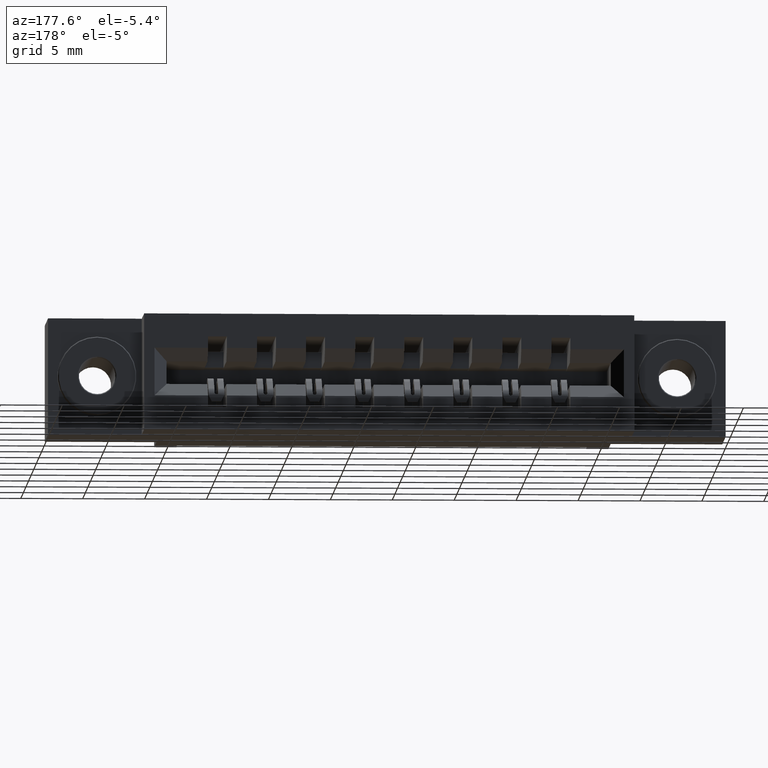
[diagram: clean part render]
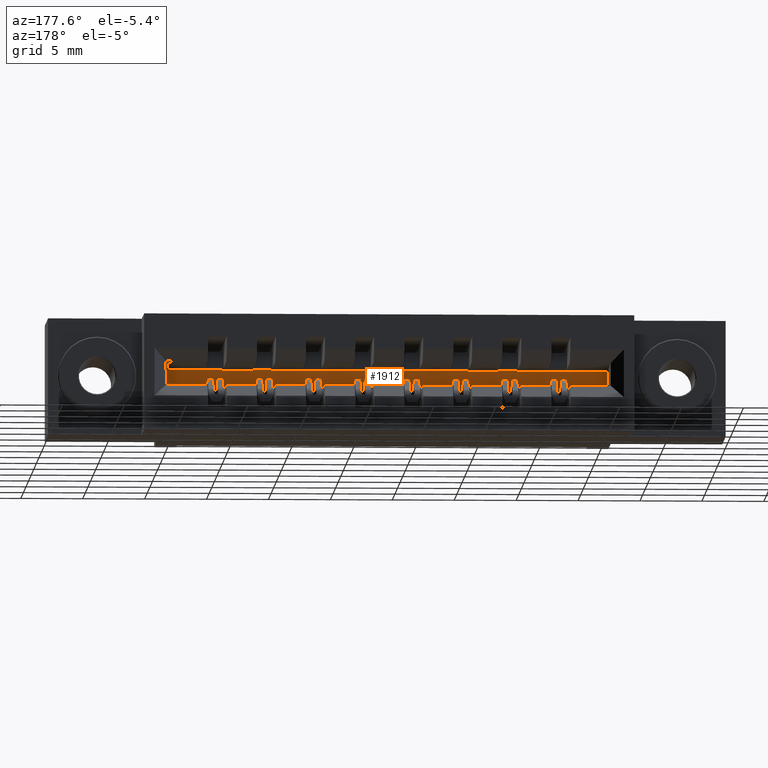
[diagram: same view with one face highlighted and labeled with its STEP entity id]
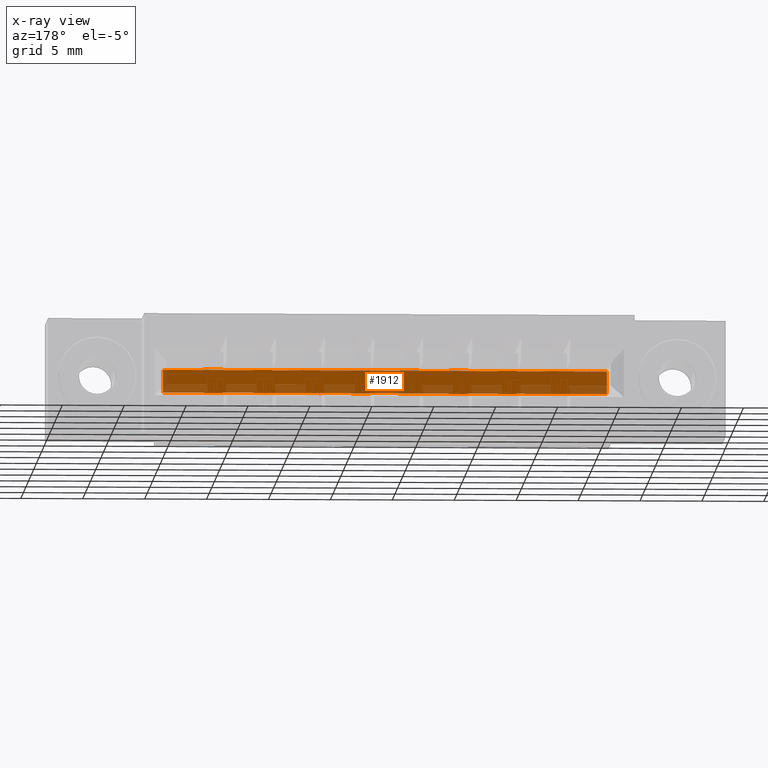
[diagram: x-ray of the same camera — body ghosted, the highlighted face saturated]
A machine part, auxiliary view. The second image highlights one B-rep face of the part: STEP entity #1912.
The next image is the same camera in x-ray: the body ghosted, the highlighted face saturated — about 27% of this face is hidden behind the body in this view.
In plain terms, the highlighted planar face has unit normal (0, 1, 0).
Its self-contained STEP definition (entity closure, byte-faithful):
#17 = CARTESIAN_POINT ( 'NONE',  ( 1.496999999999999900, 0.2700000000000001800, -0.1480000000000000200 ) ) ;
#32 = DIRECTION ( 'NONE',  ( 0.0000000000000000000, -3.691686477924679400E-015, -1.000000000000000000 ) ) ;
#61 = CARTESIAN_POINT ( 'NONE',  ( 0.9689999999999998600, 0.2700000000000001800, -0.1480000000000000200 ) ) ;
#65 = LINE ( 'NONE', #7395, #8002 ) ;
#85 = CARTESIAN_POINT ( 'NONE',  ( 1.437000000000000100, 0.2700000000000001800, -0.1480000000000000200 ) ) ;
#96 = VERTEX_POINT ( 'NONE', #7820 ) ;
#109 = CARTESIAN_POINT ( 'NONE',  ( 1.340999999999999700, 0.2700000000000001800, -0.1480000000000000200 ) ) ;
#132 = VERTEX_POINT ( 'NONE', #3170 ) ;
#150 = LINE ( 'NONE', #9900, #3816 ) ;
#188 = DIRECTION ( 'NONE',  ( 0.0000000000000000000, -3.691686477924679400E-015, -1.000000000000000000 ) ) ;
#193 = CARTESIAN_POINT ( 'NONE',  ( 1.124999999999999800, 0.2699999999999999100, -0.2220000000000000600 ) ) ;
#232 = VERTEX_POINT ( 'NONE', #1913 ) ;
#248 = DIRECTION ( 'NONE',  ( 1.000000000000000000, -0.0000000000000000000, -0.0000000000000000000 ) ) ;
#307 = CARTESIAN_POINT ( 'NONE',  ( 1.340999999999999700, 0.2700000000000001800, -0.1490000000000000800 ) ) ;
#315 = LINE ( 'NONE', #3771, #6733 ) ;
#334 = DIRECTION ( 'NONE',  ( 0.0000000000000000000, -3.691686477924679400E-015, -1.000000000000000000 ) ) ;
#359 = EDGE_CURVE ( 'NONE', #4703, #9682, #1841, .T. ) ;
#365 = CARTESIAN_POINT ( 'NONE',  ( 1.653000000000000000, 0.2700000000000001800, -0.1479999999999999900 ) ) ;
#382 = VERTEX_POINT ( 'NONE', #1179 ) ;
#385 = EDGE_CURVE ( 'NONE', #684, #1754, #10816, .T. ) ;
#426 = VERTEX_POINT ( 'NONE', #6503 ) ;
#451 = VECTOR ( 'NONE', #972, 39.37007874015748100 ) ;
#453 = LINE ( 'NONE', #9325, #9333 ) ;
#486 = EDGE_CURVE ( 'NONE', #3622, #7977, #7326, .T. ) ;
#490 = VERTEX_POINT ( 'NONE', #1550 ) ;
#505 = VERTEX_POINT ( 'NONE', #7603 ) ;
#573 = EDGE_CURVE ( 'NONE', #5412, #7275, #7056, .T. ) ;
#581 = ORIENTED_EDGE ( 'NONE', *, *, #6278, .T. ) ;
#600 = CARTESIAN_POINT ( 'NONE',  ( 0.5010000000000001100, 0.2699999999999999100, -0.2220000000000000900 ) ) ;
#668 = ORIENTED_EDGE ( 'NONE', *, *, #1735, .T. ) ;
#671 = EDGE_CURVE ( 'NONE', #1975, #6317, #7721, .T. ) ;
#684 = VERTEX_POINT ( 'NONE', #3009 ) ;
#705 = DIRECTION ( 'NONE',  ( 0.0000000000000000000, 0.0000000000000000000, 1.000000000000000000 ) ) ;
#739 = EDGE_CURVE ( 'NONE', #11229, #3923, #8387, .T. ) ;
#755 = CARTESIAN_POINT ( 'NONE',  ( 0.8730000000000000000, 0.2699999999999999100, -0.2210000000000000900 ) ) ;
#766 = CARTESIAN_POINT ( 'NONE',  ( 0.8730000000000000000, 0.2700000000000001800, -0.1480000000000000500 ) ) ;
#771 = DIRECTION ( 'NONE',  ( 0.0000000000000000000, -3.691686477924679400E-015, -1.000000000000000000 ) ) ;
#872 = VECTOR ( 'NONE', #4515, 39.37007874015748100 ) ;
#906 = EDGE_CURVE ( 'NONE', #1352, #1975, #7993, .T. ) ;
#912 = VERTEX_POINT ( 'NONE', #3604 ) ;
#972 = DIRECTION ( 'NONE',  ( 1.000000000000000000, -0.0000000000000000000, -0.0000000000000000000 ) ) ;
#1006 = VERTEX_POINT ( 'NONE', #4684 ) ;
#1024 = VERTEX_POINT ( 'NONE', #3094 ) ;
#1117 = DIRECTION ( 'NONE',  ( 0.0000000000000000000, 1.000000000000000000, 0.0000000000000000000 ) ) ;
#1137 = DIRECTION ( 'NONE',  ( 0.0000000000000000000, -3.691686477924679400E-015, -1.000000000000000000 ) ) ;
#1155 = LINE ( 'NONE', #7339, #2138 ) ;
#1165 = VECTOR ( 'NONE', #10775, 39.37007874015748100 ) ;
#1179 = CARTESIAN_POINT ( 'NONE',  ( 0.6570000000000000300, 0.2699999999999999100, -0.2220000000000000900 ) ) ;
#1217 = ORIENTED_EDGE ( 'NONE', *, *, #359, .T. ) ;
#1225 = EDGE_CURVE ( 'NONE', #7275, #9377, #10796, .T. ) ;
#1250 = LINE ( 'NONE', #7922, #5075 ) ;
#1294 = VERTEX_POINT ( 'NONE', #1449 ) ;
#1295 = LINE ( 'NONE', #8810, #2526 ) ;
#1296 = ORIENTED_EDGE ( 'NONE', *, *, #3714, .F. ) ;
#1298 = VERTEX_POINT ( 'NONE', #9461 ) ;
#1352 = VERTEX_POINT ( 'NONE', #8558 ) ;
#1363 = EDGE_CURVE ( 'NONE', #1298, #7259, #8931, .T. ) ;
#1374 = VECTOR ( 'NONE', #6060, 39.37007874015748100 ) ;
#1406 = DIRECTION ( 'NONE',  ( 1.000000000000000000, -0.0000000000000000000, -0.0000000000000000000 ) ) ;
#1449 = CARTESIAN_POINT ( 'NONE',  ( 1.124999999999999800, 0.2699999999999999100, -0.2220000000000000600 ) ) ;
#1485 = CARTESIAN_POINT ( 'NONE',  ( 0.5010000000000001100, 0.2700000000000001800, -0.1480000000000000800 ) ) ;
#1550 = CARTESIAN_POINT ( 'NONE',  ( 0.8730000000000000000, 0.2700000000000001800, -0.1490000000000000800 ) ) ;
#1578 = CARTESIAN_POINT ( 'NONE',  ( 0.9689999999999998600, 0.2700000000000001800, -0.1480000000000000200 ) ) ;
#1598 = CARTESIAN_POINT ( 'NONE',  ( 1.593000000000000200, 0.2700000000000001800, -0.1490000000000000800 ) ) ;
#1607 = CARTESIAN_POINT ( 'NONE',  ( 0.3710000000000000000, 0.2699999999999999100, -0.1490000000000000800 ) ) ;
#1611 = ORIENTED_EDGE ( 'NONE', *, *, #3985, .F. ) ;
#1617 = VECTOR ( 'NONE', #7698, 39.37007874015748100 ) ;
#1652 = VECTOR ( 'NONE', #7826, 39.37007874015748100 ) ;
#1667 = DIRECTION ( 'NONE',  ( -1.000000000000000000, -0.0000000000000000000, -0.0000000000000000000 ) ) ;
#1677 = EDGE_CURVE ( 'NONE', #10314, #1006, #8492, .T. ) ;
#1693 = VERTEX_POINT ( 'NONE', #7562 ) ;
#1694 = LINE ( 'NONE', #1825, #7198 ) ;
#1699 = CARTESIAN_POINT ( 'NONE',  ( 0.3710000000000000000, 0.2699999999999999100, -0.1490000000000000800 ) ) ;
#1712 = ORIENTED_EDGE ( 'NONE', *, *, #6440, .T. ) ;
#1735 = EDGE_CURVE ( 'NONE', #684, #505, #315, .T. ) ;
#1743 = CARTESIAN_POINT ( 'NONE',  ( 0.8129999999999999400, 0.2700000000000001800, -0.1480000000000000500 ) ) ;
#1754 = VERTEX_POINT ( 'NONE', #2432 ) ;
#1821 = CARTESIAN_POINT ( 'NONE',  ( 1.340999999999999700, 0.2700000000000001800, -0.1480000000000000200 ) ) ;
#1825 = CARTESIAN_POINT ( 'NONE',  ( 1.280999999999999700, 0.2700000000000001800, -0.1480000000000000200 ) ) ;
#1830 = ORIENTED_EDGE ( 'NONE', *, *, #5913, .T. ) ;
#1841 = LINE ( 'NONE', #10707, #6627 ) ;
#1864 = CARTESIAN_POINT ( 'NONE',  ( 0.3710000000000000000, 0.2699999999999999100, -0.1490000000000000800 ) ) ;
#1867 = CARTESIAN_POINT ( 'NONE',  ( 0.3710000000000000000, 0.2699999999999999100, -0.2210000000000000900 ) ) ;
#1892 = ORIENTED_EDGE ( 'NONE', *, *, #8944, .T. ) ;
#1912 = ADVANCED_FACE ( 'NONE', ( #9590 ), #5531, .T. ) ;
#1913 = CARTESIAN_POINT ( 'NONE',  ( 1.124999999999999800, 0.2699999999999999100, -0.2210000000000000900 ) ) ;
#1917 = ORIENTED_EDGE ( 'NONE', *, *, #9978, .F. ) ;
#1919 = ORIENTED_EDGE ( 'NONE', *, *, #3332, .T. ) ;
#1955 = CARTESIAN_POINT ( 'NONE',  ( 1.593000000000000200, 0.2699999999999999100, -0.2220000000000000000 ) ) ;
#1961 = CARTESIAN_POINT ( 'NONE',  ( 1.028999999999999900, 0.2700000000000001800, -0.1480000000000000200 ) ) ;
#1972 = DIRECTION ( 'NONE',  ( 0.0000000000000000000, -3.691686477924679400E-015, -1.000000000000000000 ) ) ;
#1975 = VERTEX_POINT ( 'NONE', #10979 ) ;
#2005 = ORIENTED_EDGE ( 'NONE', *, *, #11067, .F. ) ;
#2009 = VERTEX_POINT ( 'NONE', #5931 ) ;
#2027 = ORIENTED_EDGE ( 'NONE', *, *, #9358, .T. ) ;
#2031 = DIRECTION ( 'NONE',  ( 1.000000000000000000, -0.0000000000000000000, -0.0000000000000000000 ) ) ;
#2051 = CARTESIAN_POINT ( 'NONE',  ( 1.124999999999999800, 0.2700000000000001800, -0.1480000000000000200 ) ) ;
#2053 = CARTESIAN_POINT ( 'NONE',  ( 0.7170000000000000800, 0.2700000000000001800, -0.1490000000000000800 ) ) ;
#2078 = ORIENTED_EDGE ( 'NONE', *, *, #10887, .T. ) ;
#2082 = VERTEX_POINT ( 'NONE', #10555 ) ;
#2088 = VECTOR ( 'NONE', #6976, 39.37007874015748100 ) ;
#2120 = VECTOR ( 'NONE', #1137, 39.37007874015748100 ) ;
#2138 = VECTOR ( 'NONE', #1406, 39.37007874015748100 ) ;
#2142 = EDGE_CURVE ( 'NONE', #7977, #2009, #7959, .T. ) ;
#2164 = ORIENTED_EDGE ( 'NONE', *, *, #4833, .T. ) ;
#2187 = CARTESIAN_POINT ( 'NONE',  ( 0.9689999999999998600, 0.2699999999999999100, -0.2220000000000000600 ) ) ;
#2196 = VERTEX_POINT ( 'NONE', #8774 ) ;
#2223 = VECTOR ( 'NONE', #7140, 39.37007874015748100 ) ;
#2283 = EDGE_CURVE ( 'NONE', #382, #2082, #3019, .T. ) ;
#2318 = CARTESIAN_POINT ( 'NONE',  ( 1.028999999999999900, 0.2700000000000001800, -0.1490000000000000800 ) ) ;
#2319 = EDGE_CURVE ( 'NONE', #8690, #4532, #6863, .T. ) ;
#2321 = VERTEX_POINT ( 'NONE', #5366 ) ;
#2327 = LINE ( 'NONE', #6436, #8482 ) ;
#2349 = CARTESIAN_POINT ( 'NONE',  ( 1.184999999999999800, 0.2699999999999999100, -0.2210000000000000900 ) ) ;
#2414 = AXIS2_PLACEMENT_3D ( 'NONE', #3629, #1117, #4535 ) ;
#2418 = CARTESIAN_POINT ( 'NONE',  ( 0.3710000000000000000, 0.2699999999999999100, -0.2210000000000000900 ) ) ;
#2432 = CARTESIAN_POINT ( 'NONE',  ( 0.6570000000000000300, 0.2700000000000001800, -0.1490000000000000800 ) ) ;
#2526 = VECTOR ( 'NONE', #7153, 39.37007874015748100 ) ;
#2569 = DIRECTION ( 'NONE',  ( 1.000000000000000000, -0.0000000000000000000, -0.0000000000000000000 ) ) ;
#2593 = EDGE_CURVE ( 'NONE', #9938, #6897, #7485, .T. ) ;
#2610 = DIRECTION ( 'NONE',  ( 1.000000000000000000, -0.0000000000000000000, -0.0000000000000000000 ) ) ;
#2643 = VECTOR ( 'NONE', #1667, 39.37007874015748100 ) ;
#2658 = ORIENTED_EDGE ( 'NONE', *, *, #9419, .T. ) ;
#2706 = CARTESIAN_POINT ( 'NONE',  ( 0.7170000000000000800, 0.2700000000000001800, -0.1480000000000000500 ) ) ;
#2727 = ORIENTED_EDGE ( 'NONE', *, *, #7135, .F. ) ;
#2729 = CARTESIAN_POINT ( 'NONE',  ( 0.8129999999999999400, 0.2699999999999999100, -0.2220000000000000600 ) ) ;
#2738 = VERTEX_POINT ( 'NONE', #10222 ) ;
#2746 = DIRECTION ( 'NONE',  ( 0.0000000000000000000, -3.691686477924679400E-015, -1.000000000000000000 ) ) ;
#2770 = EDGE_CURVE ( 'NONE', #9682, #8464, #4335, .T. ) ;
#2841 = DIRECTION ( 'NONE',  ( -1.000000000000000000, -0.0000000000000000000, -0.0000000000000000000 ) ) ;
#2887 = VERTEX_POINT ( 'NONE', #9019 ) ;
#2890 = CARTESIAN_POINT ( 'NONE',  ( 0.5610000000000000500, 0.2700000000000001800, -0.1480000000000000800 ) ) ;
#2909 = DIRECTION ( 'NONE',  ( -1.000000000000000000, -0.0000000000000000000, -0.0000000000000000000 ) ) ;
#2995 = EDGE_CURVE ( 'NONE', #232, #9233, #1295, .T. ) ;
#3006 = VECTOR ( 'NONE', #4102, 39.37007874015748100 ) ;
#3007 = CARTESIAN_POINT ( 'NONE',  ( 0.3710000000000000000, 0.2699999999999999100, -0.2210000000000000900 ) ) ;
#3009 = CARTESIAN_POINT ( 'NONE',  ( 0.6570000000000000300, 0.2700000000000001800, -0.1480000000000000500 ) ) ;
#3019 = LINE ( 'NONE', #9020, #6878 ) ;
#3053 = ORIENTED_EDGE ( 'NONE', *, *, #3690, .T. ) ;
#3076 = ORIENTED_EDGE ( 'NONE', *, *, #9992, .F. ) ;
#3086 = CARTESIAN_POINT ( 'NONE',  ( 1.280999999999999700, 0.2700000000000001800, -0.1490000000000000800 ) ) ;
#3094 = CARTESIAN_POINT ( 'NONE',  ( 0.8129999999999999400, 0.2699999999999999100, -0.2210000000000000900 ) ) ;
#3122 = EDGE_CURVE ( 'NONE', #8643, #4990, #1155, .T. ) ;
#3124 = DIRECTION ( 'NONE',  ( 0.0000000000000000000, -3.691686477924679400E-015, -1.000000000000000000 ) ) ;
#3170 = CARTESIAN_POINT ( 'NONE',  ( 1.496999999999999900, 0.2699999999999999100, -0.2210000000000000900 ) ) ;
#3202 = LINE ( 'NONE', #9639, #7080 ) ;
#3253 = EDGE_CURVE ( 'NONE', #3303, #5716, #3202, .T. ) ;
#3298 = CARTESIAN_POINT ( 'NONE',  ( 1.783000000000000100, 0.2699999999999999100, -0.2210000000000000900 ) ) ;
#3299 = CARTESIAN_POINT ( 'NONE',  ( 1.437000000000000100, 0.2700000000000001800, -0.1480000000000000200 ) ) ;
#3300 = VECTOR ( 'NONE', #6805, 39.37007874015748100 ) ;
#3303 = VERTEX_POINT ( 'NONE', #8992 ) ;
#3327 = VECTOR ( 'NONE', #2031, 39.37007874015748100 ) ;
#3332 = EDGE_CURVE ( 'NONE', #7165, #96, #5934, .T. ) ;
#3361 = ORIENTED_EDGE ( 'NONE', *, *, #3781, .T. ) ;
#3443 = LINE ( 'NONE', #600, #11198 ) ;
#3446 = VECTOR ( 'NONE', #2841, 39.37007874015748100 ) ;
#3549 = EDGE_CURVE ( 'NONE', #4735, #10314, #8139, .T. ) ;
#3590 = VECTOR ( 'NONE', #2610, 39.37007874015748100 ) ;
#3604 = CARTESIAN_POINT ( 'NONE',  ( 0.8730000000000000000, 0.2700000000000001800, -0.1480000000000000500 ) ) ;
#3607 = DIRECTION ( 'NONE',  ( 1.000000000000000000, 0.0000000000000000000, 0.0000000000000000000 ) ) ;
#3617 = EDGE_CURVE ( 'NONE', #490, #8854, #6210, .T. ) ;
#3622 = VERTEX_POINT ( 'NONE', #85 ) ;
#3629 = CARTESIAN_POINT ( 'NONE',  ( 0.3710000000000000000, 0.2699999999999999100, -0.1490000000000000800 ) ) ;
#3631 = EDGE_CURVE ( 'NONE', #4030, #2738, #10954, .T. ) ;
#3632 = EDGE_CURVE ( 'NONE', #11107, #7380, #7863, .T. ) ;
#3690 = EDGE_CURVE ( 'NONE', #505, #4030, #3747, .T. ) ;
#3714 = EDGE_CURVE ( 'NONE', #6912, #9709, #10163, .T. ) ;
#3738 = VECTOR ( 'NONE', #4236, 39.37007874015748100 ) ;
#3747 = LINE ( 'NONE', #2706, #4448 ) ;
#3771 = CARTESIAN_POINT ( 'NONE',  ( 0.6570000000000000300, 0.2700000000000001800, -0.1480000000000000500 ) ) ;
#3781 = EDGE_CURVE ( 'NONE', #9233, #2196, #5649, .T. ) ;
#3786 = ORIENTED_EDGE ( 'NONE', *, *, #9496, .T. ) ;
#3791 = CARTESIAN_POINT ( 'NONE',  ( 1.593000000000000200, 0.2700000000000001800, -0.1479999999999999900 ) ) ;
#3797 = EDGE_CURVE ( 'NONE', #3923, #9938, #65, .T. ) ;
#3816 = VECTOR ( 'NONE', #8052, 39.37007874015748100 ) ;
#3826 = CARTESIAN_POINT ( 'NONE',  ( 1.124999999999999800, 0.2700000000000001800, -0.1480000000000000200 ) ) ;
#3849 = LINE ( 'NONE', #8020, #9332 ) ;
#3855 = CARTESIAN_POINT ( 'NONE',  ( 0.5610000000000000500, 0.2700000000000001800, -0.1490000000000000800 ) ) ;
#3874 = VECTOR ( 'NONE', #10740, 39.37007874015748100 ) ;
#3904 = CARTESIAN_POINT ( 'NONE',  ( 1.783000000000000100, 0.2699999999999999100, -0.1490000000000000800 ) ) ;
#3913 = ORIENTED_EDGE ( 'NONE', *, *, #6619, .T. ) ;
#3922 = ORIENTED_EDGE ( 'NONE', *, *, #7981, .T. ) ;
#3923 = VERTEX_POINT ( 'NONE', #3904 ) ;
#3964 = ORIENTED_EDGE ( 'NONE', *, *, #10059, .F. ) ;
#3980 = LINE ( 'NONE', #5156, #1374 ) ;
#3985 = EDGE_CURVE ( 'NONE', #3303, #9168, #1694, .T. ) ;
#4030 = VERTEX_POINT ( 'NONE', #2053 ) ;
#4102 = DIRECTION ( 'NONE',  ( -1.000000000000000000, -0.0000000000000000000, -0.0000000000000000000 ) ) ;
#4202 = LINE ( 'NONE', #8699, #8299 ) ;
#4222 = CARTESIAN_POINT ( 'NONE',  ( 1.496999999999999900, 0.2700000000000001800, -0.1480000000000000200 ) ) ;
#4227 = CARTESIAN_POINT ( 'NONE',  ( 1.184999999999999800, 0.2700000000000001800, -0.1480000000000000200 ) ) ;
#4236 = DIRECTION ( 'NONE',  ( 1.000000000000000000, 0.0000000000000000000, 0.0000000000000000000 ) ) ;
#4238 = CARTESIAN_POINT ( 'NONE',  ( 1.653000000000000000, 0.2700000000000001800, -0.1490000000000000800 ) ) ;
#4277 = ORIENTED_EDGE ( 'NONE', *, *, #2319, .T. ) ;
#4289 = CARTESIAN_POINT ( 'NONE',  ( 0.5010000000000001100, 0.2700000000000001800, -0.1480000000000000800 ) ) ;
#4294 = LINE ( 'NONE', #10282, #5369 ) ;
#4316 = CARTESIAN_POINT ( 'NONE',  ( 1.028999999999999900, 0.2700000000000001800, -0.1480000000000000200 ) ) ;
#4324 = ORIENTED_EDGE ( 'NONE', *, *, #2283, .F. ) ;
#4335 = LINE ( 'NONE', #5956, #4858 ) ;
#4365 = CARTESIAN_POINT ( 'NONE',  ( 0.3710000000000000000, 0.2699999999999999100, -0.1490000000000000800 ) ) ;
#4396 = DIRECTION ( 'NONE',  ( 0.0000000000000000000, -3.691686477924679400E-015, -1.000000000000000000 ) ) ;
#4397 = EDGE_CURVE ( 'NONE', #8134, #6912, #6055, .T. ) ;
#4437 = VECTOR ( 'NONE', #3124, 39.37007874015748100 ) ;
#4448 = VECTOR ( 'NONE', #10558, 39.37007874015748100 ) ;
#4462 = DIRECTION ( 'NONE',  ( 1.000000000000000000, 0.0000000000000000000, 0.0000000000000000000 ) ) ;
#4471 = ORIENTED_EDGE ( 'NONE', *, *, #10644, .T. ) ;
#4501 = ORIENTED_EDGE ( 'NONE', *, *, #2995, .T. ) ;
#4515 = DIRECTION ( 'NONE',  ( 1.000000000000000000, 0.0000000000000000000, 0.0000000000000000000 ) ) ;
#4519 = VECTOR ( 'NONE', #10891, 39.37007874015748100 ) ;
#4532 = VERTEX_POINT ( 'NONE', #3855 ) ;
#4534 = LINE ( 'NONE', #109, #11169 ) ;
#4535 = DIRECTION ( 'NONE',  ( 0.0000000000000000000, -0.0000000000000000000, 1.000000000000000000 ) ) ;
#4542 = VECTOR ( 'NONE', #10666, 39.37007874015748100 ) ;
#4575 = VECTOR ( 'NONE', #771, 39.37007874015748100 ) ;
#4596 = DIRECTION ( 'NONE',  ( 1.000000000000000000, 0.0000000000000000000, 0.0000000000000000000 ) ) ;
#4612 = CARTESIAN_POINT ( 'NONE',  ( 1.653000000000000000, 0.2700000000000001800, -0.1479999999999999900 ) ) ;
#4620 = CARTESIAN_POINT ( 'NONE',  ( 1.593000000000000200, 0.2700000000000001800, -0.1479999999999999900 ) ) ;
#4629 = VERTEX_POINT ( 'NONE', #2187 ) ;
#4652 = VECTOR ( 'NONE', #6663, 39.37007874015748100 ) ;
#4655 = ORIENTED_EDGE ( 'NONE', *, *, #385, .F. ) ;
#4684 = CARTESIAN_POINT ( 'NONE',  ( 1.340999999999999700, 0.2699999999999999100, -0.2220000000000000600 ) ) ;
#4697 = LINE ( 'NONE', #9016, #7992 ) ;
#4703 = VERTEX_POINT ( 'NONE', #8591 ) ;
#4735 = VERTEX_POINT ( 'NONE', #6860 ) ;
#4737 = CARTESIAN_POINT ( 'NONE',  ( 0.6570000000000000300, 0.2700000000000001800, -0.1480000000000000500 ) ) ;
#4742 = EDGE_CURVE ( 'NONE', #8037, #2738, #453, .T. ) ;
#4833 = EDGE_CURVE ( 'NONE', #1693, #10174, #10397, .T. ) ;
#4834 = VECTOR ( 'NONE', #9071, 39.37007874015748100 ) ;
#4858 = VECTOR ( 'NONE', #9519, 39.37007874015748100 ) ;
#4881 = ORIENTED_EDGE ( 'NONE', *, *, #5898, .F. ) ;
#4923 = VERTEX_POINT ( 'NONE', #10694 ) ;
#4925 = LINE ( 'NONE', #1867, #7545 ) ;
#4936 = EDGE_CURVE ( 'NONE', #9844, #2887, #5890, .T. ) ;
#4943 = LINE ( 'NONE', #6649, #5211 ) ;
#4960 = ORIENTED_EDGE ( 'NONE', *, *, #739, .T. ) ;
#4990 = VERTEX_POINT ( 'NONE', #6303 ) ;
#5002 = CARTESIAN_POINT ( 'NONE',  ( 0.5610000000000000500, 0.2700000000000001800, -0.1480000000000000800 ) ) ;
#5029 = DIRECTION ( 'NONE',  ( 0.0000000000000000000, -3.691686477924679400E-015, -1.000000000000000000 ) ) ;
#5075 = VECTOR ( 'NONE', #8772, 39.37007874015748100 ) ;
#5140 = DIRECTION ( 'NONE',  ( 0.0000000000000000000, -3.691686477924679400E-015, -1.000000000000000000 ) ) ;
#5156 = CARTESIAN_POINT ( 'NONE',  ( 0.9689999999999998600, 0.2700000000000001800, -0.1480000000000000200 ) ) ;
#5200 = LINE ( 'NONE', #4222, #3300 ) ;
#5211 = VECTOR ( 'NONE', #6750, 39.37007874015748100 ) ;
#5218 = EDGE_CURVE ( 'NONE', #4735, #7165, #4925, .T. ) ;
#5220 = LINE ( 'NONE', #7547, #4437 ) ;
#5260 = EDGE_CURVE ( 'NONE', #10600, #9844, #7161, .T. ) ;
#5295 = CARTESIAN_POINT ( 'NONE',  ( 1.280999999999999700, 0.2699999999999999100, -0.2220000000000000600 ) ) ;
#5327 = CARTESIAN_POINT ( 'NONE',  ( 1.437000000000000100, 0.2699999999999999100, -0.2220000000000000000 ) ) ;
#5334 = VECTOR ( 'NONE', #8347, 39.37007874015748100 ) ;
#5360 = LINE ( 'NONE', #1743, #3590 ) ;
#5366 = CARTESIAN_POINT ( 'NONE',  ( 0.8129999999999999400, 0.2699999999999999100, -0.2220000000000000600 ) ) ;
#5369 = VECTOR ( 'NONE', #9466, 39.37007874015748100 ) ;
#5394 = DIRECTION ( 'NONE',  ( -1.000000000000000000, -0.0000000000000000000, -0.0000000000000000000 ) ) ;
#5412 = VERTEX_POINT ( 'NONE', #8276 ) ;
#5429 = CARTESIAN_POINT ( 'NONE',  ( 1.124999999999999800, 0.2700000000000001800, -0.1490000000000000800 ) ) ;
#5455 = ORIENTED_EDGE ( 'NONE', *, *, #486, .T. ) ;
#5471 = CARTESIAN_POINT ( 'NONE',  ( 1.593000000000000200, 0.2700000000000001800, -0.1479999999999999900 ) ) ;
#5481 = VECTOR ( 'NONE', #10484, 39.37007874015748100 ) ;
#5510 = DIRECTION ( 'NONE',  ( 1.000000000000000000, -0.0000000000000000000, -0.0000000000000000000 ) ) ;
#5531 = PLANE ( 'NONE',  #2414 ) ;
#5627 = LINE ( 'NONE', #2729, #451 ) ;
#5649 = LINE ( 'NONE', #1961, #2120 ) ;
#5716 = VERTEX_POINT ( 'NONE', #1821 ) ;
#5724 = ORIENTED_EDGE ( 'NONE', *, *, #8912, .T. ) ;
#5735 = LINE ( 'NONE', #1699, #1652 ) ;
#5737 = CARTESIAN_POINT ( 'NONE',  ( 1.437000000000000100, 0.2700000000000001800, -0.1480000000000000200 ) ) ;
#5748 = CARTESIAN_POINT ( 'NONE',  ( 1.593000000000000200, 0.2699999999999999100, -0.2220000000000000000 ) ) ;
#5750 = VECTOR ( 'NONE', #8201, 39.37007874015748100 ) ;
#5781 = VECTOR ( 'NONE', #9578, 39.37007874015748100 ) ;
#5811 = EDGE_CURVE ( 'NONE', #6165, #1006, #4534, .T. ) ;
#5839 = ORIENTED_EDGE ( 'NONE', *, *, #2142, .T. ) ;
#5854 = ORIENTED_EDGE ( 'NONE', *, *, #4936, .F. ) ;
#5875 = EDGE_CURVE ( 'NONE', #4990, #11229, #8467, .T. ) ;
#5890 = LINE ( 'NONE', #1955, #9597 ) ;
#5898 = EDGE_CURVE ( 'NONE', #1693, #7384, #150, .T. ) ;
#5913 = EDGE_CURVE ( 'NONE', #7380, #9716, #2327, .T. ) ;
#5923 = VECTOR ( 'NONE', #705, 39.37007874015748100 ) ;
#5931 = CARTESIAN_POINT ( 'NONE',  ( 1.496999999999999900, 0.2700000000000001800, -0.1490000000000000800 ) ) ;
#5934 = LINE ( 'NONE', #10636, #4834 ) ;
#5939 = DIRECTION ( 'NONE',  ( 1.000000000000000000, -0.0000000000000000000, -0.0000000000000000000 ) ) ;
#5956 = CARTESIAN_POINT ( 'NONE',  ( 0.8730000000000000000, 0.2700000000000001800, -0.1480000000000000500 ) ) ;
#5959 = ORIENTED_EDGE ( 'NONE', *, *, #1225, .T. ) ;
#5966 = CARTESIAN_POINT ( 'NONE',  ( 0.3710000000000000000, 0.2699999999999999100, -0.1490000000000000800 ) ) ;
#5973 = CARTESIAN_POINT ( 'NONE',  ( 0.9689999999999998600, 0.2700000000000001800, -0.1490000000000000800 ) ) ;
#6020 = ORIENTED_EDGE ( 'NONE', *, *, #2593, .T. ) ;
#6054 = ORIENTED_EDGE ( 'NONE', *, *, #9958, .T. ) ;
#6055 = LINE ( 'NONE', #7227, #10409 ) ;
#6060 = DIRECTION ( 'NONE',  ( 1.000000000000000000, -0.0000000000000000000, -0.0000000000000000000 ) ) ;
#6147 = CARTESIAN_POINT ( 'NONE',  ( 1.496999999999999900, 0.2699999999999999100, -0.2220000000000000000 ) ) ;
#6165 = VERTEX_POINT ( 'NONE', #9608 ) ;
#6173 = CARTESIAN_POINT ( 'NONE',  ( 0.3710000000000000000, 0.2699999999999999100, -0.1490000000000000800 ) ) ;
#6191 = VECTOR ( 'NONE', #7652, 39.37007874015748100 ) ;
#6195 = DIRECTION ( 'NONE',  ( 1.000000000000000000, -0.0000000000000000000, -0.0000000000000000000 ) ) ;
#6210 = LINE ( 'NONE', #9729, #872 ) ;
#6212 = CARTESIAN_POINT ( 'NONE',  ( 0.9689999999999998600, 0.2699999999999999100, -0.2220000000000000600 ) ) ;
#6252 = ORIENTED_EDGE ( 'NONE', *, *, #573, .T. ) ;
#6278 = EDGE_CURVE ( 'NONE', #6972, #426, #5735, .T. ) ;
#6303 = CARTESIAN_POINT ( 'NONE',  ( 1.653000000000000000, 0.2700000000000001800, -0.1479999999999999900 ) ) ;
#6306 = ORIENTED_EDGE ( 'NONE', *, *, #3631, .T. ) ;
#6317 = VERTEX_POINT ( 'NONE', #8977 ) ;
#6340 = ORIENTED_EDGE ( 'NONE', *, *, #11263, .T. ) ;
#6380 = EDGE_CURVE ( 'NONE', #3622, #426, #9714, .T. ) ;
#6436 = CARTESIAN_POINT ( 'NONE',  ( 1.184999999999999800, 0.2700000000000001800, -0.1480000000000000200 ) ) ;
#6440 = EDGE_CURVE ( 'NONE', #10600, #132, #7537, .T. ) ;
#6503 = CARTESIAN_POINT ( 'NONE',  ( 1.437000000000000100, 0.2700000000000001800, -0.1490000000000000800 ) ) ;
#6553 = ORIENTED_EDGE ( 'NONE', *, *, #906, .T. ) ;
#6561 = ORIENTED_EDGE ( 'NONE', *, *, #6380, .F. ) ;
#6596 = LINE ( 'NONE', #1864, #8499 ) ;
#6619 = EDGE_CURVE ( 'NONE', #6897, #2887, #9436, .T. ) ;
#6627 = VECTOR ( 'NONE', #2909, 39.37007874015748100 ) ;
#6649 = CARTESIAN_POINT ( 'NONE',  ( 0.3710000000000000000, 0.2699999999999999100, -0.1490000000000000800 ) ) ;
#6663 = DIRECTION ( 'NONE',  ( 1.000000000000000000, -0.0000000000000000000, -0.0000000000000000000 ) ) ;
#6711 = ORIENTED_EDGE ( 'NONE', *, *, #3797, .T. ) ;
#6733 = VECTOR ( 'NONE', #9067, 39.37007874015748100 ) ;
#6750 = DIRECTION ( 'NONE',  ( 1.000000000000000000, 0.0000000000000000000, 0.0000000000000000000 ) ) ;
#6781 = VECTOR ( 'NONE', #4596, 39.37007874015748100 ) ;
#6805 = DIRECTION ( 'NONE',  ( 0.0000000000000000000, -3.691686477924679400E-015, -1.000000000000000000 ) ) ;
#6860 = CARTESIAN_POINT ( 'NONE',  ( 1.280999999999999700, 0.2699999999999999100, -0.2210000000000000900 ) ) ;
#6863 = LINE ( 'NONE', #8906, #4542 ) ;
#6878 = VECTOR ( 'NONE', #10030, 39.37007874015748100 ) ;
#6897 = VERTEX_POINT ( 'NONE', #8826 ) ;
#6912 = VERTEX_POINT ( 'NONE', #5327 ) ;
#6934 = ORIENTED_EDGE ( 'NONE', *, *, #1677, .F. ) ;
#6972 = VERTEX_POINT ( 'NONE', #307 ) ;
#6976 = DIRECTION ( 'NONE',  ( -1.000000000000000000, -0.0000000000000000000, -0.0000000000000000000 ) ) ;
#6991 = LINE ( 'NONE', #8688, #8609 ) ;
#7056 = LINE ( 'NONE', #4316, #5781 ) ;
#7063 = CARTESIAN_POINT ( 'NONE',  ( 0.3710000000000000000, 0.2699999999999999100, -0.2210000000000000900 ) ) ;
#7064 = CARTESIAN_POINT ( 'NONE',  ( 1.184999999999999800, 0.2700000000000001800, -0.1490000000000000800 ) ) ;
#7080 = VECTOR ( 'NONE', #8756, 39.37007874015748100 ) ;
#7135 = EDGE_CURVE ( 'NONE', #232, #1294, #10226, .T. ) ;
#7140 = DIRECTION ( 'NONE',  ( 1.000000000000000000, 0.0000000000000000000, 0.0000000000000000000 ) ) ;
#7153 = DIRECTION ( 'NONE',  ( -1.000000000000000000, -0.0000000000000000000, -0.0000000000000000000 ) ) ;
#7161 = LINE ( 'NONE', #5471, #5750 ) ;
#7165 = VERTEX_POINT ( 'NONE', #2349 ) ;
#7192 = CARTESIAN_POINT ( 'NONE',  ( 1.124999999999999800, 0.2700000000000001800, -0.1480000000000000200 ) ) ;
#7198 = VECTOR ( 'NONE', #4396, 39.37007874015748100 ) ;
#7227 = CARTESIAN_POINT ( 'NONE',  ( 1.437000000000000100, 0.2700000000000001800, -0.1480000000000000200 ) ) ;
#7259 = VERTEX_POINT ( 'NONE', #10991 ) ;
#7275 = VERTEX_POINT ( 'NONE', #2318 ) ;
#7278 = LINE ( 'NONE', #1485, #4652 ) ;
#7326 = LINE ( 'NONE', #3299, #11079 ) ;
#7339 = CARTESIAN_POINT ( 'NONE',  ( 1.593000000000000200, 0.2700000000000001800, -0.1479999999999999900 ) ) ;
#7342 = DIRECTION ( 'NONE',  ( 0.0000000000000000000, -3.691686477924679400E-015, -1.000000000000000000 ) ) ;
#7380 = VERTEX_POINT ( 'NONE', #4227 ) ;
#7384 = VERTEX_POINT ( 'NONE', #11171 ) ;
#7395 = CARTESIAN_POINT ( 'NONE',  ( 1.783000000000000100, 0.2699999999999999100, -0.2210000000000000900 ) ) ;
#7439 = LINE ( 'NONE', #6212, #9859 ) ;
#7468 = EDGE_CURVE ( 'NONE', #4703, #4629, #11260, .T. ) ;
#7485 = LINE ( 'NONE', #3007, #1165 ) ;
#7537 = LINE ( 'NONE', #9346, #3006 ) ;
#7545 = VECTOR ( 'NONE', #10463, 39.37007874015748100 ) ;
#7547 = CARTESIAN_POINT ( 'NONE',  ( 0.8129999999999999400, 0.2700000000000001800, -0.1480000000000000500 ) ) ;
#7562 = CARTESIAN_POINT ( 'NONE',  ( 0.5010000000000001100, 0.2699999999999999100, -0.2210000000000000900 ) ) ;
#7566 = VERTEX_POINT ( 'NONE', #61 ) ;
#7603 = CARTESIAN_POINT ( 'NONE',  ( 0.7170000000000000800, 0.2700000000000001800, -0.1480000000000000500 ) ) ;
#7647 = DIRECTION ( 'NONE',  ( 1.000000000000000000, -0.0000000000000000000, -0.0000000000000000000 ) ) ;
#7652 = DIRECTION ( 'NONE',  ( 0.0000000000000000000, -3.691686477924679400E-015, -1.000000000000000000 ) ) ;
#7671 = VECTOR ( 'NONE', #4462, 39.37007874015748100 ) ;
#7698 = DIRECTION ( 'NONE',  ( 0.0000000000000000000, -3.691686477924679400E-015, -1.000000000000000000 ) ) ;
#7704 = DIRECTION ( 'NONE',  ( 0.0000000000000000000, -3.691686477924679400E-015, -1.000000000000000000 ) ) ;
#7721 = LINE ( 'NONE', #5002, #4575 ) ;
#7745 = ORIENTED_EDGE ( 'NONE', *, *, #9889, .T. ) ;
#7800 = CARTESIAN_POINT ( 'NONE',  ( 0.8129999999999999400, 0.2700000000000001800, -0.1480000000000000500 ) ) ;
#7801 = ORIENTED_EDGE ( 'NONE', *, *, #11125, .F. ) ;
#7802 = VECTOR ( 'NONE', #9870, 39.37007874015748100 ) ;
#7820 = CARTESIAN_POINT ( 'NONE',  ( 1.184999999999999800, 0.2699999999999999100, -0.2220000000000000600 ) ) ;
#7826 = DIRECTION ( 'NONE',  ( 1.000000000000000000, 0.0000000000000000000, 0.0000000000000000000 ) ) ;
#7863 = LINE ( 'NONE', #7192, #3327 ) ;
#7878 = VERTEX_POINT ( 'NONE', #1598 ) ;
#7910 = ORIENTED_EDGE ( 'NONE', *, *, #9570, .F. ) ;
#7922 = CARTESIAN_POINT ( 'NONE',  ( 0.6570000000000000300, 0.2700000000000001800, -0.1480000000000000500 ) ) ;
#7959 = LINE ( 'NONE', #17, #5481 ) ;
#7966 = ORIENTED_EDGE ( 'NONE', *, *, #5875, .T. ) ;
#7977 = VERTEX_POINT ( 'NONE', #11211 ) ;
#7981 = EDGE_CURVE ( 'NONE', #5716, #6972, #4202, .T. ) ;
#7992 = VECTOR ( 'NONE', #8980, 39.37007874015748100 ) ;
#7993 = LINE ( 'NONE', #8133, #3446 ) ;
#8002 = VECTOR ( 'NONE', #8144, 39.37007874015748100 ) ;
#8020 = CARTESIAN_POINT ( 'NONE',  ( 0.3710000000000000000, 0.2699999999999999100, -0.2210000000000000900 ) ) ;
#8037 = VERTEX_POINT ( 'NONE', #7800 ) ;
#8052 = DIRECTION ( 'NONE',  ( 0.0000000000000000000, -3.691686477924679400E-015, -1.000000000000000000 ) ) ;
#8133 = CARTESIAN_POINT ( 'NONE',  ( 0.3710000000000000000, 0.2699999999999999100, -0.2210000000000000900 ) ) ;
#8134 = VERTEX_POINT ( 'NONE', #8815 ) ;
#8139 = LINE ( 'NONE', #9479, #10025 ) ;
#8144 = DIRECTION ( 'NONE',  ( -0.0000000000000000000, -0.0000000000000000000, -1.000000000000000000 ) ) ;
#8201 = DIRECTION ( 'NONE',  ( 0.0000000000000000000, -3.691686477924679400E-015, -1.000000000000000000 ) ) ;
#8211 = LINE ( 'NONE', #6173, #7671 ) ;
#8276 = CARTESIAN_POINT ( 'NONE',  ( 1.028999999999999900, 0.2700000000000001800, -0.1480000000000000200 ) ) ;
#8299 = VECTOR ( 'NONE', #9619, 39.37007874015748100 ) ;
#8330 = LINE ( 'NONE', #3826, #9699 ) ;
#8347 = DIRECTION ( 'NONE',  ( 0.0000000000000000000, -3.691686477924679400E-015, -1.000000000000000000 ) ) ;
#8380 = ORIENTED_EDGE ( 'NONE', *, *, #2770, .T. ) ;
#8387 = LINE ( 'NONE', #8552, #3738 ) ;
#8464 = VERTEX_POINT ( 'NONE', #9515 ) ;
#8467 = LINE ( 'NONE', #4612, #8750 ) ;
#8482 = VECTOR ( 'NONE', #7342, 39.37007874015748100 ) ;
#8484 = ORIENTED_EDGE ( 'NONE', *, *, #9435, .T. ) ;
#8492 = LINE ( 'NONE', #5295, #9598 ) ;
#8499 = VECTOR ( 'NONE', #3607, 39.37007874015748100 ) ;
#8550 = ORIENTED_EDGE ( 'NONE', *, *, #1363, .F. ) ;
#8552 = CARTESIAN_POINT ( 'NONE',  ( 0.3710000000000000000, 0.2699999999999999100, -0.1490000000000000800 ) ) ;
#8558 = CARTESIAN_POINT ( 'NONE',  ( 0.6570000000000000300, 0.2699999999999999100, -0.2210000000000000900 ) ) ;
#8591 = CARTESIAN_POINT ( 'NONE',  ( 0.9689999999999998600, 0.2699999999999999100, -0.2210000000000000900 ) ) ;
#8609 = VECTOR ( 'NONE', #9469, 39.37007874015748100 ) ;
#8643 = VERTEX_POINT ( 'NONE', #4620 ) ;
#8646 = EDGE_CURVE ( 'NONE', #7566, #8854, #4697, .T. ) ;
#8687 = CARTESIAN_POINT ( 'NONE',  ( 1.593000000000000200, 0.2699999999999999100, -0.2210000000000000900 ) ) ;
#8688 = CARTESIAN_POINT ( 'NONE',  ( 0.7170000000000000800, 0.2700000000000001800, -0.1480000000000000500 ) ) ;
#8690 = VERTEX_POINT ( 'NONE', #2890 ) ;
#8699 = CARTESIAN_POINT ( 'NONE',  ( 1.340999999999999700, 0.2700000000000001800, -0.1480000000000000200 ) ) ;
#8750 = VECTOR ( 'NONE', #188, 39.37007874015748100 ) ;
#8756 = DIRECTION ( 'NONE',  ( 1.000000000000000000, -0.0000000000000000000, -0.0000000000000000000 ) ) ;
#8761 = VECTOR ( 'NONE', #5140, 39.37007874015748100 ) ;
#8772 = DIRECTION ( 'NONE',  ( 0.0000000000000000000, -3.691686477924679400E-015, -1.000000000000000000 ) ) ;
#8774 = CARTESIAN_POINT ( 'NONE',  ( 1.028999999999999900, 0.2699999999999999100, -0.2220000000000000600 ) ) ;
#8810 = CARTESIAN_POINT ( 'NONE',  ( 0.3710000000000000000, 0.2699999999999999100, -0.2210000000000000900 ) ) ;
#8815 = CARTESIAN_POINT ( 'NONE',  ( 1.437000000000000100, 0.2699999999999999100, -0.2210000000000000900 ) ) ;
#8826 = CARTESIAN_POINT ( 'NONE',  ( 1.653000000000000000, 0.2699999999999999100, -0.2210000000000000900 ) ) ;
#8836 = EDGE_CURVE ( 'NONE', #10174, #9258, #10810, .T. ) ;
#8853 = ORIENTED_EDGE ( 'NONE', *, *, #8836, .T. ) ;
#8854 = VERTEX_POINT ( 'NONE', #5973 ) ;
#8906 = CARTESIAN_POINT ( 'NONE',  ( 0.5610000000000000500, 0.2700000000000001800, -0.1480000000000000800 ) ) ;
#8912 = EDGE_CURVE ( 'NONE', #8134, #6165, #10289, .T. ) ;
#8931 = LINE ( 'NONE', #4289, #6191 ) ;
#8944 = EDGE_CURVE ( 'NONE', #2009, #7878, #4294, .T. ) ;
#8977 = CARTESIAN_POINT ( 'NONE',  ( 0.5610000000000000500, 0.2699999999999999100, -0.2220000000000000900 ) ) ;
#8980 = DIRECTION ( 'NONE',  ( 0.0000000000000000000, -3.691686477924679400E-015, -1.000000000000000000 ) ) ;
#8983 = ORIENTED_EDGE ( 'NONE', *, *, #11093, .F. ) ;
#8992 = CARTESIAN_POINT ( 'NONE',  ( 1.280999999999999700, 0.2700000000000001800, -0.1480000000000000200 ) ) ;
#9016 = CARTESIAN_POINT ( 'NONE',  ( 0.9689999999999998600, 0.2700000000000001800, -0.1480000000000000200 ) ) ;
#9019 = CARTESIAN_POINT ( 'NONE',  ( 1.653000000000000000, 0.2699999999999999100, -0.2220000000000000000 ) ) ;
#9020 = CARTESIAN_POINT ( 'NONE',  ( 0.6570000000000000300, 0.2699999999999999100, -0.2220000000000000900 ) ) ;
#9048 = LINE ( 'NONE', #766, #8761 ) ;
#9067 = DIRECTION ( 'NONE',  ( 1.000000000000000000, -0.0000000000000000000, -0.0000000000000000000 ) ) ;
#9071 = DIRECTION ( 'NONE',  ( 0.0000000000000000000, -3.691686477924679400E-015, -1.000000000000000000 ) ) ;
#9168 = VERTEX_POINT ( 'NONE', #3086 ) ;
#9181 = DIRECTION ( 'NONE',  ( 0.0000000000000000000, -3.691686477924679400E-015, -1.000000000000000000 ) ) ;
#9200 = CARTESIAN_POINT ( 'NONE',  ( 0.3710000000000000000, 0.2699999999999999100, -0.2210000000000000900 ) ) ;
#9220 = EDGE_CURVE ( 'NONE', #1024, #2321, #5220, .T. ) ;
#9233 = VERTEX_POINT ( 'NONE', #9442 ) ;
#9240 = ORIENTED_EDGE ( 'NONE', *, *, #4742, .F. ) ;
#9254 = CARTESIAN_POINT ( 'NONE',  ( 1.280999999999999700, 0.2699999999999999100, -0.2220000000000000600 ) ) ;
#9258 = VERTEX_POINT ( 'NONE', #1607 ) ;
#9295 = ORIENTED_EDGE ( 'NONE', *, *, #9220, .F. ) ;
#9325 = CARTESIAN_POINT ( 'NONE',  ( 0.8129999999999999400, 0.2700000000000001800, -0.1480000000000000500 ) ) ;
#9332 = VECTOR ( 'NONE', #5394, 39.37007874015748100 ) ;
#9333 = VECTOR ( 'NONE', #5029, 39.37007874015748100 ) ;
#9346 = CARTESIAN_POINT ( 'NONE',  ( 0.3710000000000000000, 0.2699999999999999100, -0.2210000000000000900 ) ) ;
#9358 = EDGE_CURVE ( 'NONE', #8037, #912, #5360, .T. ) ;
#9361 = VECTOR ( 'NONE', #6195, 39.37007874015748100 ) ;
#9377 = VERTEX_POINT ( 'NONE', #5429 ) ;
#9379 = ORIENTED_EDGE ( 'NONE', *, *, #3253, .T. ) ;
#9388 = EDGE_LOOP ( 'NONE', ( #6020, #3913, #5854, #10637, #1712, #7745, #1296, #9803, #5724, #9402, #6934, #10753, #10458, #1919, #2005, #2727, #4501, #3361, #1917, #9613, #1217, #8380, #3964, #9295, #2658, #6340, #4324, #3076, #6553, #10227, #7910, #4881, #2164, #8853, #8484, #8550, #2078, #4277, #3786, #4655, #668, #3053, #6306, #9240, #2027, #10310, #11009, #10036, #6054, #6252, #5959, #7801, #10046, #1830, #4471, #1611, #9379, #3922, #581, #6561, #5455, #5839, #1892, #8983, #11102, #7966, #4960, #6711 ) ) ;
#9402 = ORIENTED_EDGE ( 'NONE', *, *, #5811, .T. ) ;
#9419 = EDGE_CURVE ( 'NONE', #1024, #4923, #3849, .T. ) ;
#9420 = CARTESIAN_POINT ( 'NONE',  ( 1.124999999999999800, 0.2700000000000001800, -0.1480000000000000200 ) ) ;
#9435 = EDGE_CURVE ( 'NONE', #9258, #7259, #6596, .T. ) ;
#9436 = LINE ( 'NONE', #365, #11032 ) ;
#9442 = CARTESIAN_POINT ( 'NONE',  ( 1.028999999999999900, 0.2699999999999999100, -0.2210000000000000900 ) ) ;
#9461 = CARTESIAN_POINT ( 'NONE',  ( 0.5010000000000001100, 0.2700000000000001800, -0.1480000000000000800 ) ) ;
#9466 = DIRECTION ( 'NONE',  ( 1.000000000000000000, 0.0000000000000000000, 0.0000000000000000000 ) ) ;
#9469 = DIRECTION ( 'NONE',  ( 0.0000000000000000000, -3.691686477924679400E-015, -1.000000000000000000 ) ) ;
#9479 = CARTESIAN_POINT ( 'NONE',  ( 1.280999999999999700, 0.2700000000000001800, -0.1480000000000000200 ) ) ;
#9496 = EDGE_CURVE ( 'NONE', #4532, #1754, #4943, .T. ) ;
#9515 = CARTESIAN_POINT ( 'NONE',  ( 0.8730000000000000000, 0.2699999999999999100, -0.2220000000000000600 ) ) ;
#9519 = DIRECTION ( 'NONE',  ( 0.0000000000000000000, -3.691686477924679400E-015, -1.000000000000000000 ) ) ;
#9570 = EDGE_CURVE ( 'NONE', #7384, #6317, #3443, .T. ) ;
#9578 = DIRECTION ( 'NONE',  ( 0.0000000000000000000, -3.691686477924679400E-015, -1.000000000000000000 ) ) ;
#9590 = FACE_OUTER_BOUND ( 'NONE', #9388, .T. ) ;
#9597 = VECTOR ( 'NONE', #5510, 39.37007874015748100 ) ;
#9598 = VECTOR ( 'NONE', #248, 39.37007874015748100 ) ;
#9608 = CARTESIAN_POINT ( 'NONE',  ( 1.340999999999999700, 0.2699999999999999100, -0.2210000000000000900 ) ) ;
#9613 = ORIENTED_EDGE ( 'NONE', *, *, #7468, .F. ) ;
#9619 = DIRECTION ( 'NONE',  ( 0.0000000000000000000, -3.691686477924679400E-015, -1.000000000000000000 ) ) ;
#9639 = CARTESIAN_POINT ( 'NONE',  ( 1.280999999999999700, 0.2700000000000001800, -0.1480000000000000200 ) ) ;
#9682 = VERTEX_POINT ( 'NONE', #755 ) ;
#9689 = VECTOR ( 'NONE', #7704, 39.37007874015748100 ) ;
#9699 = VECTOR ( 'NONE', #334, 39.37007874015748100 ) ;
#9709 = VERTEX_POINT ( 'NONE', #6147 ) ;
#9714 = LINE ( 'NONE', #5737, #5334 ) ;
#9716 = VERTEX_POINT ( 'NONE', #7064 ) ;
#9729 = CARTESIAN_POINT ( 'NONE',  ( 0.3710000000000000000, 0.2699999999999999100, -0.1490000000000000800 ) ) ;
#9738 = CARTESIAN_POINT ( 'NONE',  ( 1.437000000000000100, 0.2699999999999999100, -0.2220000000000000000 ) ) ;
#9803 = ORIENTED_EDGE ( 'NONE', *, *, #4397, .F. ) ;
#9844 = VERTEX_POINT ( 'NONE', #5748 ) ;
#9859 = VECTOR ( 'NONE', #2569, 39.37007874015748100 ) ;
#9870 = DIRECTION ( 'NONE',  ( 1.000000000000000000, -0.0000000000000000000, -0.0000000000000000000 ) ) ;
#9889 = EDGE_CURVE ( 'NONE', #132, #9709, #5200, .T. ) ;
#9900 = CARTESIAN_POINT ( 'NONE',  ( 0.5010000000000001100, 0.2700000000000001800, -0.1480000000000000800 ) ) ;
#9938 = VERTEX_POINT ( 'NONE', #3298 ) ;
#9958 = EDGE_CURVE ( 'NONE', #7566, #5412, #3980, .T. ) ;
#9978 = EDGE_CURVE ( 'NONE', #4629, #2196, #7439, .T. ) ;
#9992 = EDGE_CURVE ( 'NONE', #1352, #382, #1250, .T. ) ;
#10025 = VECTOR ( 'NONE', #2746, 39.37007874015748100 ) ;
#10030 = DIRECTION ( 'NONE',  ( 1.000000000000000000, -0.0000000000000000000, -0.0000000000000000000 ) ) ;
#10036 = ORIENTED_EDGE ( 'NONE', *, *, #8646, .F. ) ;
#10046 = ORIENTED_EDGE ( 'NONE', *, *, #3632, .T. ) ;
#10059 = EDGE_CURVE ( 'NONE', #2321, #8464, #5627, .T. ) ;
#10163 = LINE ( 'NONE', #9738, #9361 ) ;
#10174 = VERTEX_POINT ( 'NONE', #10885 ) ;
#10222 = CARTESIAN_POINT ( 'NONE',  ( 0.8129999999999999400, 0.2700000000000001800, -0.1490000000000000800 ) ) ;
#10226 = LINE ( 'NONE', #9420, #9689 ) ;
#10227 = ORIENTED_EDGE ( 'NONE', *, *, #671, .T. ) ;
#10282 = CARTESIAN_POINT ( 'NONE',  ( 0.3710000000000000000, 0.2699999999999999100, -0.1490000000000000800 ) ) ;
#10289 = LINE ( 'NONE', #2418, #2643 ) ;
#10310 = ORIENTED_EDGE ( 'NONE', *, *, #10705, .T. ) ;
#10314 = VERTEX_POINT ( 'NONE', #9254 ) ;
#10397 = LINE ( 'NONE', #7063, #2088 ) ;
#10409 = VECTOR ( 'NONE', #1972, 39.37007874015748100 ) ;
#10458 = ORIENTED_EDGE ( 'NONE', *, *, #5218, .T. ) ;
#10463 = DIRECTION ( 'NONE',  ( -1.000000000000000000, -0.0000000000000000000, -0.0000000000000000000 ) ) ;
#10484 = DIRECTION ( 'NONE',  ( 0.0000000000000000000, -3.691686477924679400E-015, -1.000000000000000000 ) ) ;
#10555 = CARTESIAN_POINT ( 'NONE',  ( 0.7170000000000000800, 0.2699999999999999100, -0.2220000000000000900 ) ) ;
#10558 = DIRECTION ( 'NONE',  ( 0.0000000000000000000, -3.691686477924679400E-015, -1.000000000000000000 ) ) ;
#10600 = VERTEX_POINT ( 'NONE', #8687 ) ;
#10636 = CARTESIAN_POINT ( 'NONE',  ( 1.184999999999999800, 0.2700000000000001800, -0.1480000000000000200 ) ) ;
#10637 = ORIENTED_EDGE ( 'NONE', *, *, #5260, .F. ) ;
#10644 = EDGE_CURVE ( 'NONE', #9716, #9168, #8211, .T. ) ;
#10666 = DIRECTION ( 'NONE',  ( 0.0000000000000000000, -3.691686477924679400E-015, -1.000000000000000000 ) ) ;
#10694 = CARTESIAN_POINT ( 'NONE',  ( 0.7170000000000000800, 0.2699999999999999100, -0.2210000000000000900 ) ) ;
#10705 = EDGE_CURVE ( 'NONE', #912, #490, #9048, .T. ) ;
#10707 = CARTESIAN_POINT ( 'NONE',  ( 0.3710000000000000000, 0.2699999999999999100, -0.2210000000000000900 ) ) ;
#10740 = DIRECTION ( 'NONE',  ( 0.0000000000000000000, -3.691686477924679400E-015, -1.000000000000000000 ) ) ;
#10753 = ORIENTED_EDGE ( 'NONE', *, *, #3549, .F. ) ;
#10759 = LINE ( 'NONE', #193, #7802 ) ;
#10775 = DIRECTION ( 'NONE',  ( -1.000000000000000000, -0.0000000000000000000, -0.0000000000000000000 ) ) ;
#10796 = LINE ( 'NONE', #5966, #2223 ) ;
#10810 = LINE ( 'NONE', #9200, #5923 ) ;
#10816 = LINE ( 'NONE', #4737, #3874 ) ;
#10885 = CARTESIAN_POINT ( 'NONE',  ( 0.3710000000000000000, 0.2699999999999999100, -0.2210000000000000900 ) ) ;
#10887 = EDGE_CURVE ( 'NONE', #1298, #8690, #7278, .T. ) ;
#10891 = DIRECTION ( 'NONE',  ( 0.0000000000000000000, -3.691686477924679400E-015, -1.000000000000000000 ) ) ;
#10954 = LINE ( 'NONE', #4365, #6781 ) ;
#10979 = CARTESIAN_POINT ( 'NONE',  ( 0.5610000000000000500, 0.2699999999999999100, -0.2210000000000000900 ) ) ;
#10991 = CARTESIAN_POINT ( 'NONE',  ( 0.5010000000000001100, 0.2700000000000001800, -0.1490000000000000800 ) ) ;
#11009 = ORIENTED_EDGE ( 'NONE', *, *, #3617, .T. ) ;
#11032 = VECTOR ( 'NONE', #9181, 39.37007874015748100 ) ;
#11067 = EDGE_CURVE ( 'NONE', #1294, #96, #10759, .T. ) ;
#11079 = VECTOR ( 'NONE', #5939, 39.37007874015748100 ) ;
#11093 = EDGE_CURVE ( 'NONE', #8643, #7878, #11268, .T. ) ;
#11102 = ORIENTED_EDGE ( 'NONE', *, *, #3122, .T. ) ;
#11107 = VERTEX_POINT ( 'NONE', #2051 ) ;
#11125 = EDGE_CURVE ( 'NONE', #11107, #9377, #8330, .T. ) ;
#11169 = VECTOR ( 'NONE', #32, 39.37007874015748100 ) ;
#11171 = CARTESIAN_POINT ( 'NONE',  ( 0.5010000000000001100, 0.2699999999999999100, -0.2220000000000000900 ) ) ;
#11198 = VECTOR ( 'NONE', #7647, 39.37007874015748100 ) ;
#11211 = CARTESIAN_POINT ( 'NONE',  ( 1.496999999999999900, 0.2700000000000001800, -0.1480000000000000200 ) ) ;
#11229 = VERTEX_POINT ( 'NONE', #4238 ) ;
#11260 = LINE ( 'NONE', #1578, #1617 ) ;
#11263 = EDGE_CURVE ( 'NONE', #4923, #2082, #6991, .T. ) ;
#11268 = LINE ( 'NONE', #3791, #4519 ) ;